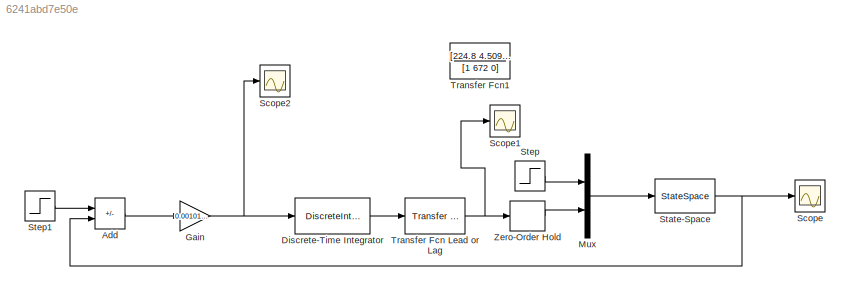
MODEL slx_6241abd7e50e
KIND model
CONFIG AbsTol = auto
CONFIG EnableMultiTasking = off
CONFIG FixedStep = auto
CONFIG MaxStep = auto
CONFIG MinStep = auto
CONFIG RelTol = 1e-6
CONFIG SampleTimeConstraint = Unconstrained
CONFIG SolverName = VariableStepAuto
CONFIG StartTime = 0.0
CONFIG StopTime = 1
BLOCK [Sum] Add
  IconShape = rectangular
  Inputs = +-
BLOCK [DiscreteIntegrator] Discrete-Time Integrator
  ICPrevOutput = DiscIntNeverNeededParam
  ICPrevScaledInput = DiscIntNeverNeededParam
  InitialConditionSetting = Auto
  IntegratorMethod = Integration: Backward Euler
  SampleTime = Tsc
  gainval = 1
BLOCK [Gain] Gain
  Gain = 0.0010141
BLOCK [Mux] Mux
  DisplayOption = bar
  Inputs = 2
BLOCK [Scope] Scope
  Floating = off
  NumInputPorts = 1
  ScopeSpecificationString = Simulink.scopes.TimeScopeBlockCfg('CurrentConfiguration', extmgr.ConfigurationSet(extmgr.Configuration('Core','General UI',true),extmgr.Configuration('Core','Source UI',true),extmgr.Configuration('Sources','WiredSimulink',true),extmgr.Configuration('Visuals','Time Domain',true,'SerializedDisplays',{struct('MinYLimReal','117.48825','MaxYLimReal','186.74107','YLabelReal','','MinYLimMag','117.48825',...<+1455ch>
BLOCK [Scope] Scope1
  Floating = off
  NumInputPorts = 1
  ScopeSpecificationString = Simulink.scopes.TimeScopeBlockCfg('CurrentConfiguration', extmgr.ConfigurationSet(extmgr.Configuration('Core','General UI',true),extmgr.Configuration('Core','Source UI',true),extmgr.Configuration('Sources','WiredSimulink',true,'DataLoggingVariableName','ScopeData1'),extmgr.Configuration('Visuals','Time Domain',true,'SerializedDisplays',{struct('MinYLimReal','-0.05048','MaxYLimReal','0.45671','YLab...<+1425ch>
BLOCK [Scope] Scope2
  Floating = off
  NumInputPorts = 1
  ScopeSpecificationString = Simulink.scopes.TimeScopeBlockCfg('CurrentConfiguration', extmgr.ConfigurationSet(extmgr.Configuration('Core','General UI',true),extmgr.Configuration('Core','Source UI',true),extmgr.Configuration('Sources','WiredSimulink',true,'DataLoggingVariableName','ScopeData2'),extmgr.Configuration('Visuals','Time Domain',true,'SerializedDisplays',{struct('MinYLimReal','-65.71479','MaxYLimReal','85.09951','YL...<+1410ch>
BLOCK [StateSpace] State-Space
  A = A.Nominal
  B = B_ss.Nominal
  C = C
  D = D_ss.Nominal
  InitialCondition = 0
BLOCK [Step] Step
  After = 45
  Before = 30
  SampleTime = 0
  Time = 0.3
BLOCK [Step] Step1
  After = 130
  Before = 60
  SampleTime = 0
  Time = 0.2
BLOCK [Reference] Transfer Fcn Lead or Lag  REF=simulink/Discrete/Transfer Fcn
Lead or Lag
  SourceBlock = simulink/Discrete/Transfer Fcn\nLead or Lag
  SourceType = Lead or Lag Compensator
BLOCK [TransferFcn] Transfer Fcn1
  Commented = on
  Denominator = [1 672 0]
  Numerator = [224.8  4.509e05]
BLOCK [ZeroOrderHold] Zero-Order Hold
  SampleTime = Tsc
LINE Add:1 -> Gain:1
LINE Discrete-Time Integrator:1 -> Transfer Fcn Lead or Lag:1
NET Gain:1 -> Discrete-Time Integrator:1, Scope2:1
LINE Mux:1 -> State-Space:1
NET State-Space:1 -> Add:2, Scope:1
LINE Step1:1 -> Add:1
LINE Step:1 -> Mux:1
NET Transfer Fcn Lead or Lag:1 -> Scope1:1, Zero-Order Hold:1
LINE Zero-Order Hold:1 -> Mux:2
note: NET lines group one-source signal fan-out (src -> all destinations, sorted); 1:1 wires keep LINE
